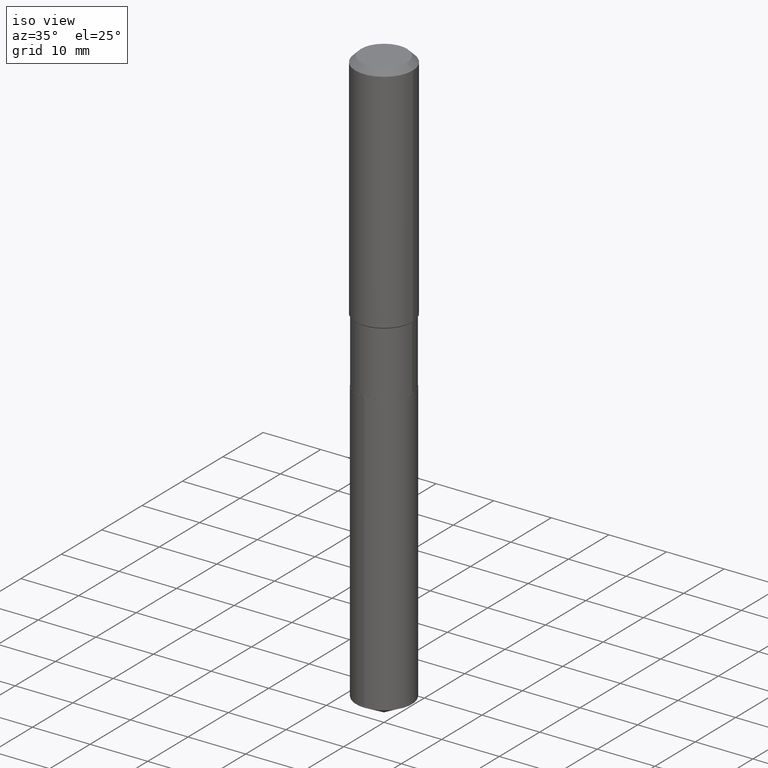
[diagram: clean part render]
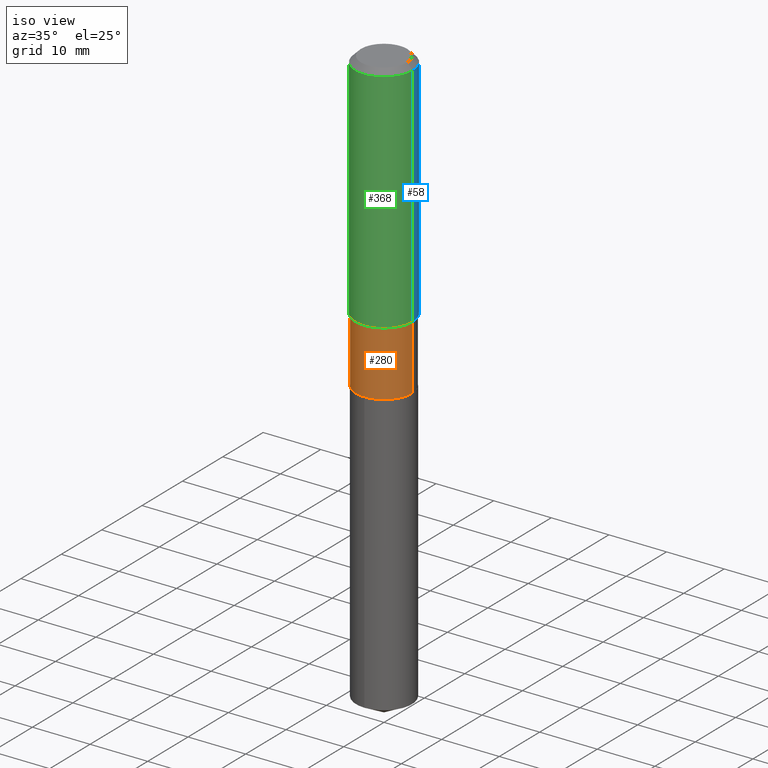
[diagram: same view with three faces highlighted in distinct colors, each labeled with its STEP entity id]
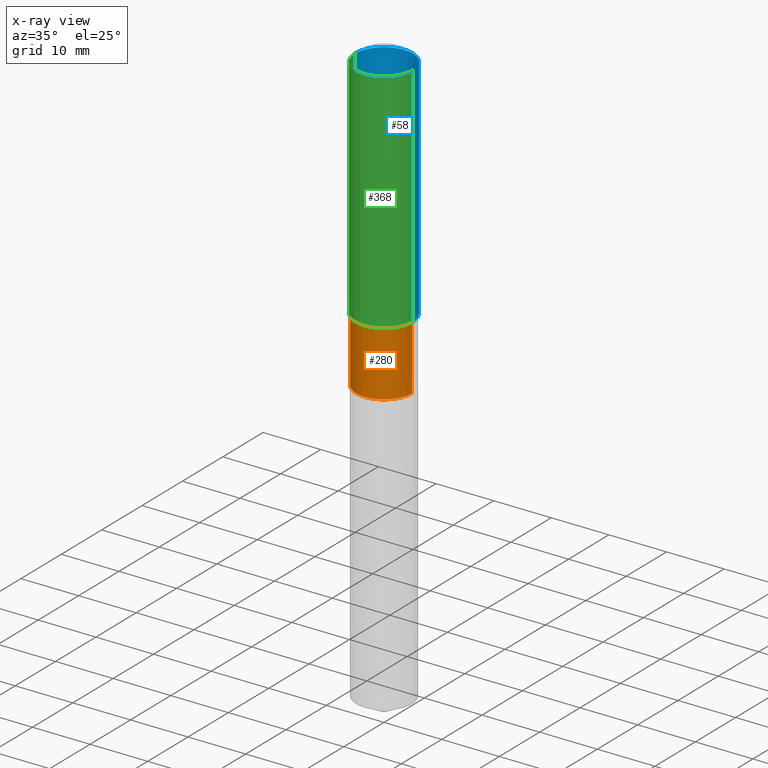
[diagram: x-ray of the same camera — body ghosted, the three highlighted faces saturated]
A machine part, iso view with three faces highlighted in distinct colors.
The next image is the same camera in x-ray (body ghosted, the three faces saturated) — at least one of them is partly hidden behind the body in this view.
Their STEP definitions:

[orange] entity #280 — the highlighted cylindrical surface (edge-blend (fillet) strip) has radius 4.8501 mm, axis along (-0, 0, 1).
#5 = CIRCLE ( 'NONE', #487, 0.1909499999999999531 ) ;
#26 = ORIENTED_EDGE ( 'NONE', *, *, #358, .T. ) ;
#33 = ORIENTED_EDGE ( 'NONE', *, *, #212, .T. ) ;
#74 = CARTESIAN_POINT ( 'NONE',  ( 4.976284473706134257E-29, -7.104815376411916848E-15, -2.034899999999999931 ) ) ;
#80 = CARTESIAN_POINT ( 'NONE',  ( 0.000000000000000000, 0.000000000000000000, 0.000000000000000000 ) ) ;
#86 = CYLINDRICAL_SURFACE ( 'NONE', #401, 0.1909499999999999809 ) ;
#100 = EDGE_LOOP ( 'NONE', ( #291, #33, #26, #251 ) ) ;
#122 = AXIS2_PLACEMENT_3D ( 'NONE', #74, #227, #220 ) ;
#141 = VECTOR ( 'NONE', #433, 39.37007874015748143 ) ;
#158 = CARTESIAN_POINT ( 'NONE',  ( 0.1909499999999999809, -1.333396723304192546E-15, 9.311059553382337160E-30 ) ) ;
#161 = CARTESIAN_POINT ( 'NONE',  ( -0.1909499999999999531, -4.982177590802761889E-15, -1.596200000000000285 ) ) ;
#170 = DIRECTION ( 'NONE',  ( 1.000000000000000000, -6.982962677686266711E-15, 0.000000000000000000 ) ) ;
#209 = CARTESIAN_POINT ( 'NONE',  ( -0.1909499999999999809, 1.356781353933911169E-15, -9.392706554841740811E-30 ) ) ;
#212 = EDGE_CURVE ( 'NONE', #484, #402, #374, .T. ) ;
#220 = DIRECTION ( 'NONE',  ( 1.000000000000000000, -6.982962677686265133E-15, 0.000000000000000000 ) ) ;
#227 = DIRECTION ( 'NONE',  ( -2.445468806185136597E-29, 3.491481338843145583E-15, 1.000000000000000000 ) ) ;
#231 = DIRECTION ( 'NONE',  ( -2.445468806185136597E-29, 3.491481338843145583E-15, 1.000000000000000000 ) ) ;
#247 = CARTESIAN_POINT ( 'NONE',  ( 3.903457308432716066E-29, -5.573102513061429663E-15, -1.596200000000000285 ) ) ;
#250 = LINE ( 'NONE', #209, #333 ) ;
#251 = ORIENTED_EDGE ( 'NONE', *, *, #451, .F. ) ;
#273 = VERTEX_POINT ( 'NONE', #161 ) ;
#280 = ADVANCED_FACE ( 'NONE', ( #474 ), #86, .T. ) ;
#290 = DIRECTION ( 'NONE',  ( -2.445468806185136597E-29, 3.491481338843145583E-15, 1.000000000000000000 ) ) ;
#291 = ORIENTED_EDGE ( 'NONE', *, *, #467, .F. ) ;
#318 = CARTESIAN_POINT ( 'NONE',  ( 0.1909499999999999531, -6.906499236365622209E-15, -1.596200000000000285 ) ) ;
#333 = VECTOR ( 'NONE', #445, 39.37007874015748143 ) ;
#348 = DIRECTION ( 'NONE',  ( 1.000000000000000000, -6.982962677686266711E-15, 4.876176775795935232E-29 ) ) ;
#358 = EDGE_CURVE ( 'NONE', #402, #462, #470, .T. ) ;
#374 = CIRCLE ( 'NONE', #122, 0.1909500000000000086 ) ;
#396 = CARTESIAN_POINT ( 'NONE',  ( -0.1909500000000000086, -4.982177590802761100E-15, -2.034899999999999931 ) ) ;
#401 = AXIS2_PLACEMENT_3D ( 'NONE', #80, #231, #348 ) ;
#402 = VERTEX_POINT ( 'NONE', #483 ) ;
#433 = DIRECTION ( 'NONE',  ( -2.445468806185136877E-29, 3.491481338843145188E-15, 1.000000000000000000 ) ) ;
#445 = DIRECTION ( 'NONE',  ( -2.445468806185136877E-29, 3.491481338843145188E-15, 1.000000000000000000 ) ) ;
#451 = EDGE_CURVE ( 'NONE', #273, #462, #5, .T. ) ;
#462 = VERTEX_POINT ( 'NONE', #318 ) ;
#467 = EDGE_CURVE ( 'NONE', #484, #273, #250, .T. ) ;
#470 = LINE ( 'NONE', #158, #141 ) ;
#474 = FACE_OUTER_BOUND ( 'NONE', #100, .T. ) ;
#483 = CARTESIAN_POINT ( 'NONE',  ( 0.1909500000000000086, -8.438212099716109394E-15, -2.034899999999999931 ) ) ;
#484 = VERTEX_POINT ( 'NONE', #396 ) ;
#487 = AXIS2_PLACEMENT_3D ( 'NONE', #247, #290, #170 ) ;

[blue] entity #58 — the highlighted cylindrical surface (edge-blend (fillet) strip) has radius 5 mm, axis along (-0, 0, 1).
#8 = LINE ( 'NONE', #108, #436 ) ;
#20 = CARTESIAN_POINT ( 'NONE',  ( 9.627810689950954155E-31, -1.374596203102556547E-16, -0.03937000000000029365 ) ) ;
#23 = ORIENTED_EDGE ( 'NONE', *, *, #432, .T. ) ;
#41 = LINE ( 'NONE', #340, #400 ) ;
#49 = AXIS2_PLACEMENT_3D ( 'NONE', #476, #326, #135 ) ;
#58 = ADVANCED_FACE ( 'NONE', ( #102 ), #407, .T. ) ;
#61 = CARTESIAN_POINT ( 'NONE',  ( -0.1968500000000000250, -1.446277821392496780E-15, -0.03937000000000029365 ) ) ;
#77 = CARTESIAN_POINT ( 'NONE',  ( 0.1968500000000002192, -6.927098976264797529E-15, -1.590300000000000047 ) ) ;
#102 = FACE_OUTER_BOUND ( 'NONE', #114, .T. ) ;
#108 = CARTESIAN_POINT ( 'NONE',  ( -0.1968500000000001082, 1.398703375343757985E-15, -9.682923725166787881E-30 ) ) ;
#110 = CARTESIAN_POINT ( 'NONE',  ( 0.1968500000000000250, -1.512055823412797189E-15, -0.03937000000000029365 ) ) ;
#111 = EDGE_CURVE ( 'NONE', #370, #426, #8, .T. ) ;
#114 = EDGE_LOOP ( 'NONE', ( #23, #488, #127, #482 ) ) ;
#127 = ORIENTED_EDGE ( 'NONE', *, *, #390, .F. ) ;
#129 = CARTESIAN_POINT ( 'NONE',  ( 0.000000000000000000, 0.000000000000000000, 0.000000000000000000 ) ) ;
#135 = DIRECTION ( 'NONE',  ( 1.000000000000000000, -6.982962677686265922E-15, 0.000000000000000000 ) ) ;
#143 = EDGE_CURVE ( 'NONE', #175, #176, #41, .T. ) ;
#167 = DIRECTION ( 'NONE',  ( 1.000000000000000000, -6.982962677686265922E-15, 0.000000000000000000 ) ) ;
#175 = VERTEX_POINT ( 'NONE', #77 ) ;
#176 = VERTEX_POINT ( 'NONE', #110 ) ;
#203 = CIRCLE ( 'NONE', #49, 0.1968500000000002192 ) ;
#237 = CARTESIAN_POINT ( 'NONE',  ( -0.1968500000000002192, -4.153799397818495766E-15, -1.590300000000000047 ) ) ;
#275 = AXIS2_PLACEMENT_3D ( 'NONE', #129, #287, #440 ) ;
#287 = DIRECTION ( 'NONE',  ( -2.445468806185136597E-29, 3.491481338843145583E-15, 1.000000000000000000 ) ) ;
#307 = DIRECTION ( 'NONE',  ( -2.445468806185136877E-29, 3.491481338843145188E-15, 1.000000000000000000 ) ) ;
#326 = DIRECTION ( 'NONE',  ( -2.445468806185136597E-29, 3.491481338843145583E-15, 1.000000000000000000 ) ) ;
#340 = CARTESIAN_POINT ( 'NONE',  ( 0.1968500000000001082, -1.374596203102542397E-15, 9.598753983154305062E-30 ) ) ;
#370 = VERTEX_POINT ( 'NONE', #237 ) ;
#382 = AXIS2_PLACEMENT_3D ( 'NONE', #20, #473, #167 ) ;
#390 = EDGE_CURVE ( 'NONE', #176, #426, #478, .T. ) ;
#400 = VECTOR ( 'NONE', #307, 39.37007874015748143 ) ;
#407 = CYLINDRICAL_SURFACE ( 'NONE', #275, 0.1968500000000001082 ) ;
#414 = DIRECTION ( 'NONE',  ( -2.445468806185136877E-29, 3.491481338843145188E-15, 1.000000000000000000 ) ) ;
#426 = VERTEX_POINT ( 'NONE', #61 ) ;
#432 = EDGE_CURVE ( 'NONE', #175, #370, #203, .T. ) ;
#436 = VECTOR ( 'NONE', #414, 39.37007874015748143 ) ;
#440 = DIRECTION ( 'NONE',  ( 1.000000000000000000, -6.982962677686266711E-15, 4.876176775795935793E-29 ) ) ;
#473 = DIRECTION ( 'NONE',  ( -2.445468806185136597E-29, 3.491481338843145583E-15, 1.000000000000000000 ) ) ;
#476 = CARTESIAN_POINT ( 'NONE',  ( 3.889029042476222915E-29, -5.552502773162254343E-15, -1.590300000000000047 ) ) ;
#478 = CIRCLE ( 'NONE', #382, 0.1968500000000000250 ) ;
#482 = ORIENTED_EDGE ( 'NONE', *, *, #143, .F. ) ;
#488 = ORIENTED_EDGE ( 'NONE', *, *, #111, .T. ) ;

[green] entity #368 — the highlighted cylindrical surface (edge-blend (fillet) strip) has radius 5 mm, axis along (-0, 0, 1).
#8 = LINE ( 'NONE', #108, #436 ) ;
#11 = DIRECTION ( 'NONE',  ( 1.000000000000000000, -6.982962677686265922E-15, 0.000000000000000000 ) ) ;
#17 = DIRECTION ( 'NONE',  ( 1.000000000000000000, -6.982962677686265922E-15, 0.000000000000000000 ) ) ;
#41 = LINE ( 'NONE', #340, #400 ) ;
#47 = CARTESIAN_POINT ( 'NONE',  ( 9.627810689950954155E-31, -1.374596203102556547E-16, -0.03937000000000029365 ) ) ;
#48 = DIRECTION ( 'NONE',  ( -2.445468806185136597E-29, 3.491481338843145583E-15, 1.000000000000000000 ) ) ;
#61 = CARTESIAN_POINT ( 'NONE',  ( -0.1968500000000000250, -1.446277821392496780E-15, -0.03937000000000029365 ) ) ;
#77 = CARTESIAN_POINT ( 'NONE',  ( 0.1968500000000002192, -6.927098976264797529E-15, -1.590300000000000047 ) ) ;
#79 = FACE_OUTER_BOUND ( 'NONE', #217, .T. ) ;
#85 = DIRECTION ( 'NONE',  ( 1.000000000000000000, -6.982962677686266711E-15, 4.876176775795935793E-29 ) ) ;
#108 = CARTESIAN_POINT ( 'NONE',  ( -0.1968500000000001082, 1.398703375343757985E-15, -9.682923725166787881E-30 ) ) ;
#110 = CARTESIAN_POINT ( 'NONE',  ( 0.1968500000000000250, -1.512055823412797189E-15, -0.03937000000000029365 ) ) ;
#111 = EDGE_CURVE ( 'NONE', #370, #426, #8, .T. ) ;
#134 = ORIENTED_EDGE ( 'NONE', *, *, #399, .T. ) ;
#143 = EDGE_CURVE ( 'NONE', #175, #176, #41, .T. ) ;
#164 = CIRCLE ( 'NONE', #394, 0.1968500000000002192 ) ;
#175 = VERTEX_POINT ( 'NONE', #77 ) ;
#176 = VERTEX_POINT ( 'NONE', #110 ) ;
#217 = EDGE_LOOP ( 'NONE', ( #297, #134, #475, #443 ) ) ;
#237 = CARTESIAN_POINT ( 'NONE',  ( -0.1968500000000002192, -4.153799397818495766E-15, -1.590300000000000047 ) ) ;
#297 = ORIENTED_EDGE ( 'NONE', *, *, #111, .F. ) ;
#307 = DIRECTION ( 'NONE',  ( -2.445468806185136877E-29, 3.491481338843145188E-15, 1.000000000000000000 ) ) ;
#309 = CYLINDRICAL_SURFACE ( 'NONE', #364, 0.1968500000000001082 ) ;
#316 = CARTESIAN_POINT ( 'NONE',  ( 3.889029042476222915E-29, -5.552502773162254343E-15, -1.590300000000000047 ) ) ;
#322 = AXIS2_PLACEMENT_3D ( 'NONE', #47, #48, #17 ) ;
#340 = CARTESIAN_POINT ( 'NONE',  ( 0.1968500000000001082, -1.374596203102542397E-15, 9.598753983154305062E-30 ) ) ;
#346 = DIRECTION ( 'NONE',  ( -2.445468806185136597E-29, 3.491481338843145583E-15, 1.000000000000000000 ) ) ;
#364 = AXIS2_PLACEMENT_3D ( 'NONE', #431, #393, #85 ) ;
#368 = ADVANCED_FACE ( 'NONE', ( #79 ), #309, .T. ) ;
#370 = VERTEX_POINT ( 'NONE', #237 ) ;
#380 = EDGE_CURVE ( 'NONE', #426, #176, #418, .T. ) ;
#393 = DIRECTION ( 'NONE',  ( -2.445468806185136597E-29, 3.491481338843145583E-15, 1.000000000000000000 ) ) ;
#394 = AXIS2_PLACEMENT_3D ( 'NONE', #316, #346, #11 ) ;
#399 = EDGE_CURVE ( 'NONE', #370, #175, #164, .T. ) ;
#400 = VECTOR ( 'NONE', #307, 39.37007874015748143 ) ;
#414 = DIRECTION ( 'NONE',  ( -2.445468806185136877E-29, 3.491481338843145188E-15, 1.000000000000000000 ) ) ;
#418 = CIRCLE ( 'NONE', #322, 0.1968500000000000250 ) ;
#426 = VERTEX_POINT ( 'NONE', #61 ) ;
#431 = CARTESIAN_POINT ( 'NONE',  ( 0.000000000000000000, 0.000000000000000000, 0.000000000000000000 ) ) ;
#436 = VECTOR ( 'NONE', #414, 39.37007874015748143 ) ;
#443 = ORIENTED_EDGE ( 'NONE', *, *, #380, .F. ) ;
#475 = ORIENTED_EDGE ( 'NONE', *, *, #143, .T. ) ;